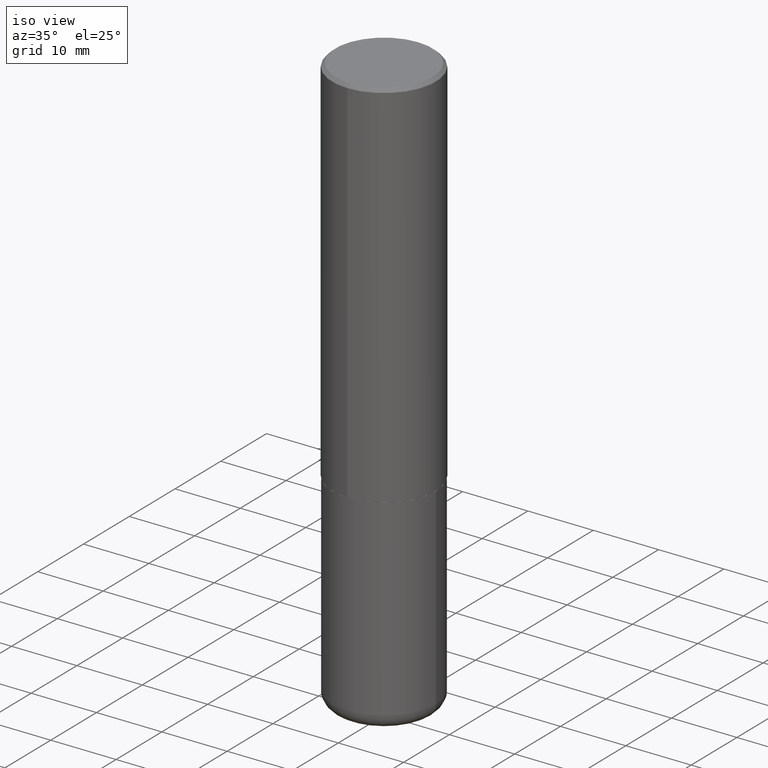
[diagram: clean part render]
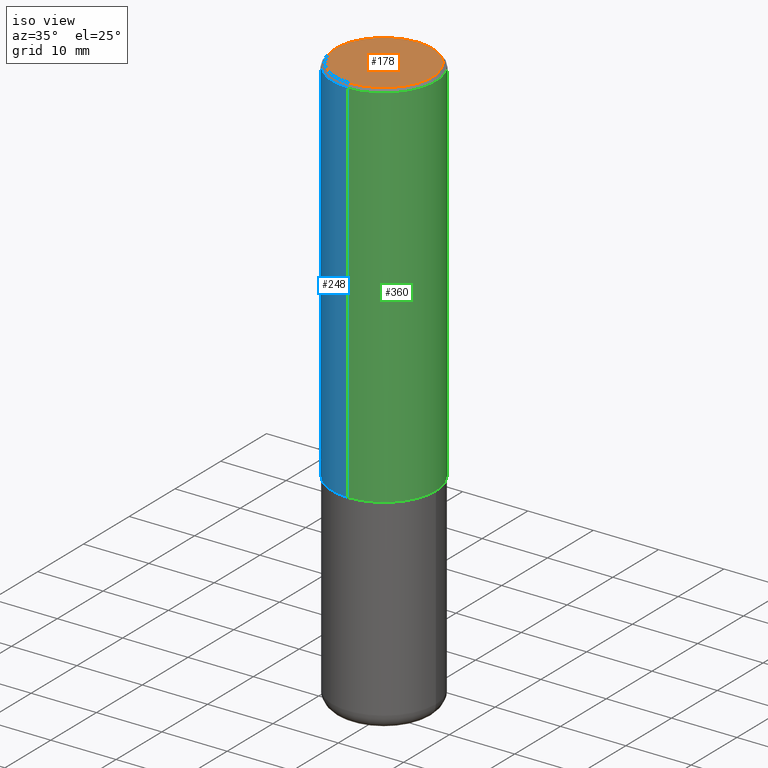
[diagram: same view with three faces highlighted in distinct colors, each labeled with its STEP entity id]
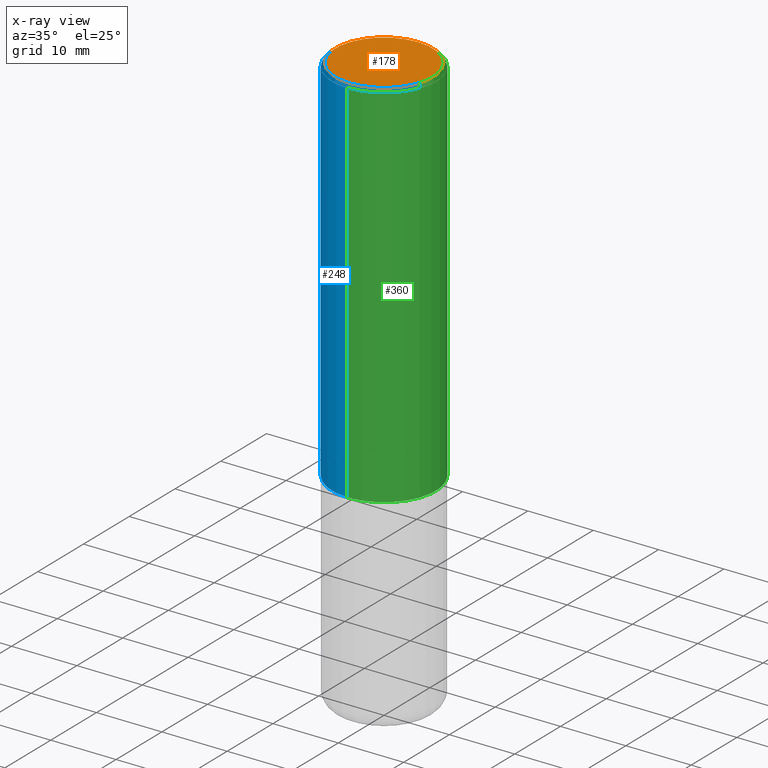
[diagram: x-ray of the same camera — body ghosted, the three highlighted faces saturated]
A machine part, iso view with three faces highlighted in distinct colors.
The next image is the same camera in x-ray (body ghosted, the three faces saturated) — at least one of them is partly hidden behind the body in this view.
Their STEP definitions:

[orange] entity #178 — the highlighted planar face has unit normal (0, -0, -1).
#39 = PLANE ( 'NONE',  #402 ) ;
#55 = DIRECTION ( 'NONE',  ( -6.982962677686266711E-15, -1.000000000000000000, 3.490333340136305549E-15 ) ) ;
#121 = CARTESIAN_POINT ( 'NONE',  ( -2.075300644325887493E-15, -0.2924999999999999267, 1.050466299798821304E-15 ) ) ;
#150 = EDGE_LOOP ( 'NONE', ( #314, #188 ) ) ;
#168 = AXIS2_PLACEMENT_3D ( 'NONE', #271, #405, #177 ) ;
#170 = DIRECTION ( 'NONE',  ( 6.982962677686265922E-15, 1.000000000000000000, -3.490333340136305154E-15 ) ) ;
#177 = DIRECTION ( 'NONE',  ( -6.982962677686266711E-15, -1.000000000000000000, 3.490333340136305549E-15 ) ) ;
#178 = ADVANCED_FACE ( 'NONE', ( #386 ), #39, .F. ) ;
#188 = ORIENTED_EDGE ( 'NONE', *, *, #250, .T. ) ;
#205 = CARTESIAN_POINT ( 'NONE',  ( 2.042516583223232540E-15, 0.2924999999999999267, -1.006150603085393049E-15 ) ) ;
#206 = AXIS2_PLACEMENT_3D ( 'NONE', #398, #308, #55 ) ;
#250 = EDGE_CURVE ( 'NONE', #282, #280, #410, .T. ) ;
#271 = CARTESIAN_POINT ( 'NONE',  ( -7.227211954301492276E-46, 1.031177024868314748E-31, 2.954379780895211224E-17 ) ) ;
#274 = CARTESIAN_POINT ( 'NONE',  ( 2.112346210000095443E-15, 0.2924999999999999267, -9.913787041809170300E-16 ) ) ;
#280 = VERTEX_POINT ( 'NONE', #274 ) ;
#282 = VERTEX_POINT ( 'NONE', #121 ) ;
#290 = EDGE_CURVE ( 'NONE', #280, #282, #403, .T. ) ;
#296 = DIRECTION ( 'NONE',  ( 2.446270449397526161E-29, -3.490333340136305154E-15, -1.000000000000000000 ) ) ;
#308 = DIRECTION ( 'NONE',  ( -2.446270449397526442E-29, 3.490333340136305154E-15, 1.000000000000000000 ) ) ;
#314 = ORIENTED_EDGE ( 'NONE', *, *, #290, .T. ) ;
#386 = FACE_OUTER_BOUND ( 'NONE', #150, .T. ) ;
#398 = CARTESIAN_POINT ( 'NONE',  ( -7.227211954301492276E-46, 1.031177024868314748E-31, 2.954379780895211224E-17 ) ) ;
#402 = AXIS2_PLACEMENT_3D ( 'NONE', #205, #296, #170 ) ;
#403 = CIRCLE ( 'NONE', #168, 0.2924999999999999267 ) ;
#405 = DIRECTION ( 'NONE',  ( -2.446270449397526442E-29, 3.490333340136305154E-15, 1.000000000000000000 ) ) ;
#410 = CIRCLE ( 'NONE', #206, 0.2924999999999999267 ) ;

[blue] entity #248 — the highlighted cylindrical surface (partial cylindrical patch) has radius 7.9375 mm, axis along (-0, 0, 1).
#9 = CARTESIAN_POINT ( 'NONE',  ( 2.220446049250313475E-15, 0.3125000000000001665, -1.090729168792595755E-15 ) ) ;
#13 = ORIENTED_EDGE ( 'NONE', *, *, #267, .T. ) ;
#35 = DIRECTION ( 'NONE',  ( -6.982962677686265133E-15, -1.000000000000000000, 3.496765431890256920E-15 ) ) ;
#37 = VECTOR ( 'NONE', #333, 39.37007874015748143 ) ;
#50 = VERTEX_POINT ( 'NONE', #175 ) ;
#53 = EDGE_LOOP ( 'NONE', ( #56, #13, #119, #107 ) ) ;
#54 = AXIS2_PLACEMENT_3D ( 'NONE', #240, #340, #59 ) ;
#56 = ORIENTED_EDGE ( 'NONE', *, *, #269, .F. ) ;
#59 = DIRECTION ( 'NONE',  ( -6.982962677686265922E-15, -1.000000000000000000, 3.496765431890253764E-15 ) ) ;
#66 = CIRCLE ( 'NONE', #291, 0.3125000000000000000 ) ;
#86 = CARTESIAN_POINT ( 'NONE',  ( -2.182175836776905099E-15, -0.3125000000000081601, -2.248999999999998334 ) ) ;
#99 = CARTESIAN_POINT ( 'NONE',  ( -2.182175836776959136E-15, -0.3125000000000001665, 1.090729168792595755E-15 ) ) ;
#107 = ORIENTED_EDGE ( 'NONE', *, *, #413, .F. ) ;
#113 = DIRECTION ( 'NONE',  ( -6.982962677686265133E-15, -1.000000000000000000, 3.490333340136304366E-15 ) ) ;
#119 = ORIENTED_EDGE ( 'NONE', *, *, #135, .T. ) ;
#135 = EDGE_CURVE ( 'NONE', #210, #50, #171, .T. ) ;
#171 = LINE ( 'NONE', #99, #37 ) ;
#175 = CARTESIAN_POINT ( 'NONE',  ( -2.143905624303602824E-15, -0.3125000000000000555, -0.01999999999999897693 ) ) ;
#179 = DIRECTION ( 'NONE',  ( -2.446270449397526161E-29, 3.490333340136305154E-15, 1.000000000000000000 ) ) ;
#190 = CARTESIAN_POINT ( 'NONE',  ( 2.182175836776958741E-15, 0.3124999999999999445, -0.02000000000000116268 ) ) ;
#196 = CARTESIAN_POINT ( 'NONE',  ( 4.892540898795069594E-31, -6.980666680272634172E-17, -0.02000000000000006981 ) ) ;
#209 = FACE_OUTER_BOUND ( 'NONE', #53, .T. ) ;
#210 = VERTEX_POINT ( 'NONE', #86 ) ;
#232 = VECTOR ( 'NONE', #179, 39.37007874015748143 ) ;
#240 = CARTESIAN_POINT ( 'NONE',  ( 5.501662240695034719E-29, -7.849759681966548232E-15, -2.248999999999999222 ) ) ;
#246 = DIRECTION ( 'NONE',  ( -2.446270449397526442E-29, 3.490333340136305154E-15, 1.000000000000000000 ) ) ;
#248 = ADVANCED_FACE ( 'NONE', ( #209 ), #334, .T. ) ;
#267 = EDGE_CURVE ( 'NONE', #354, #210, #318, .T. ) ;
#269 = EDGE_CURVE ( 'NONE', #354, #404, #336, .T. ) ;
#272 = AXIS2_PLACEMENT_3D ( 'NONE', #278, #246, #113 ) ;
#278 = CARTESIAN_POINT ( 'NONE',  ( 0.000000000000000000, 0.000000000000000000, 0.000000000000000000 ) ) ;
#291 = AXIS2_PLACEMENT_3D ( 'NONE', #196, #375, #35 ) ;
#318 = CIRCLE ( 'NONE', #54, 0.3125000000000002776 ) ;
#333 = DIRECTION ( 'NONE',  ( -2.446270449397526161E-29, 3.490333340136305154E-15, 1.000000000000000000 ) ) ;
#334 = CYLINDRICAL_SURFACE ( 'NONE', #272, 0.3125000000000001665 ) ;
#336 = LINE ( 'NONE', #9, #232 ) ;
#340 = DIRECTION ( 'NONE',  ( -2.446270449397526442E-29, 3.490333340136305154E-15, 1.000000000000000000 ) ) ;
#354 = VERTEX_POINT ( 'NONE', #362 ) ;
#362 = CARTESIAN_POINT ( 'NONE',  ( 2.220446049250341874E-15, 0.3124999999999924505, -2.249000000000000554 ) ) ;
#375 = DIRECTION ( 'NONE',  ( -2.446270449397526442E-29, 3.490333340136305154E-15, 1.000000000000000000 ) ) ;
#404 = VERTEX_POINT ( 'NONE', #190 ) ;
#413 = EDGE_CURVE ( 'NONE', #404, #50, #66, .T. ) ;

[green] entity #360 — the highlighted cylindrical surface (partial cylindrical patch) has radius 7.9375 mm, axis along (-0, 0, 1).
#1 = CARTESIAN_POINT ( 'NONE',  ( 4.892540898795069594E-31, -6.980666680272634172E-17, -0.02000000000000006981 ) ) ;
#9 = CARTESIAN_POINT ( 'NONE',  ( 2.220446049250313475E-15, 0.3125000000000001665, -1.090729168792595755E-15 ) ) ;
#23 = DIRECTION ( 'NONE',  ( -2.446270449397526442E-29, 3.490333340136305154E-15, 1.000000000000000000 ) ) ;
#31 = AXIS2_PLACEMENT_3D ( 'NONE', #80, #146, #400 ) ;
#37 = VECTOR ( 'NONE', #333, 39.37007874015748143 ) ;
#43 = CIRCLE ( 'NONE', #197, 0.3125000000000002776 ) ;
#50 = VERTEX_POINT ( 'NONE', #175 ) ;
#80 = CARTESIAN_POINT ( 'NONE',  ( 0.000000000000000000, 0.000000000000000000, 0.000000000000000000 ) ) ;
#85 = ORIENTED_EDGE ( 'NONE', *, *, #269, .T. ) ;
#86 = CARTESIAN_POINT ( 'NONE',  ( -2.182175836776905099E-15, -0.3125000000000081601, -2.248999999999998334 ) ) ;
#99 = CARTESIAN_POINT ( 'NONE',  ( -2.182175836776959136E-15, -0.3125000000000001665, 1.090729168792595755E-15 ) ) ;
#116 = CARTESIAN_POINT ( 'NONE',  ( 5.501662240695034719E-29, -7.849759681966548232E-15, -2.248999999999999222 ) ) ;
#135 = EDGE_CURVE ( 'NONE', #210, #50, #171, .T. ) ;
#146 = DIRECTION ( 'NONE',  ( -2.446270449397526442E-29, 3.490333340136305154E-15, 1.000000000000000000 ) ) ;
#152 = ORIENTED_EDGE ( 'NONE', *, *, #260, .T. ) ;
#171 = LINE ( 'NONE', #99, #37 ) ;
#175 = CARTESIAN_POINT ( 'NONE',  ( -2.143905624303602824E-15, -0.3125000000000000555, -0.01999999999999897693 ) ) ;
#179 = DIRECTION ( 'NONE',  ( -2.446270449397526161E-29, 3.490333340136305154E-15, 1.000000000000000000 ) ) ;
#190 = CARTESIAN_POINT ( 'NONE',  ( 2.182175836776958741E-15, 0.3124999999999999445, -0.02000000000000116268 ) ) ;
#192 = EDGE_CURVE ( 'NONE', #50, #404, #321, .T. ) ;
#197 = AXIS2_PLACEMENT_3D ( 'NONE', #116, #23, #217 ) ;
#210 = VERTEX_POINT ( 'NONE', #86 ) ;
#217 = DIRECTION ( 'NONE',  ( -6.982962677686265922E-15, -1.000000000000000000, 3.496765431890253764E-15 ) ) ;
#232 = VECTOR ( 'NONE', #179, 39.37007874015748143 ) ;
#237 = DIRECTION ( 'NONE',  ( -6.982962677686265133E-15, -1.000000000000000000, 3.496765431890256920E-15 ) ) ;
#257 = AXIS2_PLACEMENT_3D ( 'NONE', #1, #394, #237 ) ;
#260 = EDGE_CURVE ( 'NONE', #210, #354, #43, .T. ) ;
#269 = EDGE_CURVE ( 'NONE', #354, #404, #336, .T. ) ;
#303 = FACE_OUTER_BOUND ( 'NONE', #309, .T. ) ;
#309 = EDGE_LOOP ( 'NONE', ( #152, #85, #339, #325 ) ) ;
#321 = CIRCLE ( 'NONE', #257, 0.3125000000000000000 ) ;
#325 = ORIENTED_EDGE ( 'NONE', *, *, #135, .F. ) ;
#333 = DIRECTION ( 'NONE',  ( -2.446270449397526161E-29, 3.490333340136305154E-15, 1.000000000000000000 ) ) ;
#336 = LINE ( 'NONE', #9, #232 ) ;
#339 = ORIENTED_EDGE ( 'NONE', *, *, #192, .F. ) ;
#342 = CYLINDRICAL_SURFACE ( 'NONE', #31, 0.3125000000000001665 ) ;
#354 = VERTEX_POINT ( 'NONE', #362 ) ;
#360 = ADVANCED_FACE ( 'NONE', ( #303 ), #342, .T. ) ;
#362 = CARTESIAN_POINT ( 'NONE',  ( 2.220446049250341874E-15, 0.3124999999999924505, -2.249000000000000554 ) ) ;
#394 = DIRECTION ( 'NONE',  ( -2.446270449397526442E-29, 3.490333340136305154E-15, 1.000000000000000000 ) ) ;
#400 = DIRECTION ( 'NONE',  ( -6.982962677686265133E-15, -1.000000000000000000, 3.490333340136304366E-15 ) ) ;
#404 = VERTEX_POINT ( 'NONE', #190 ) ;